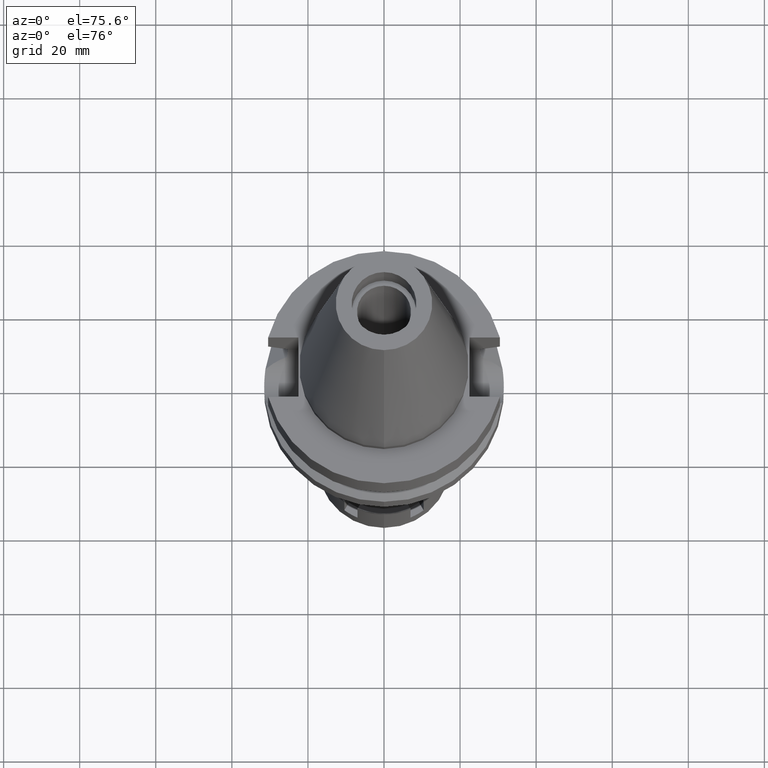
[diagram: clean part render]
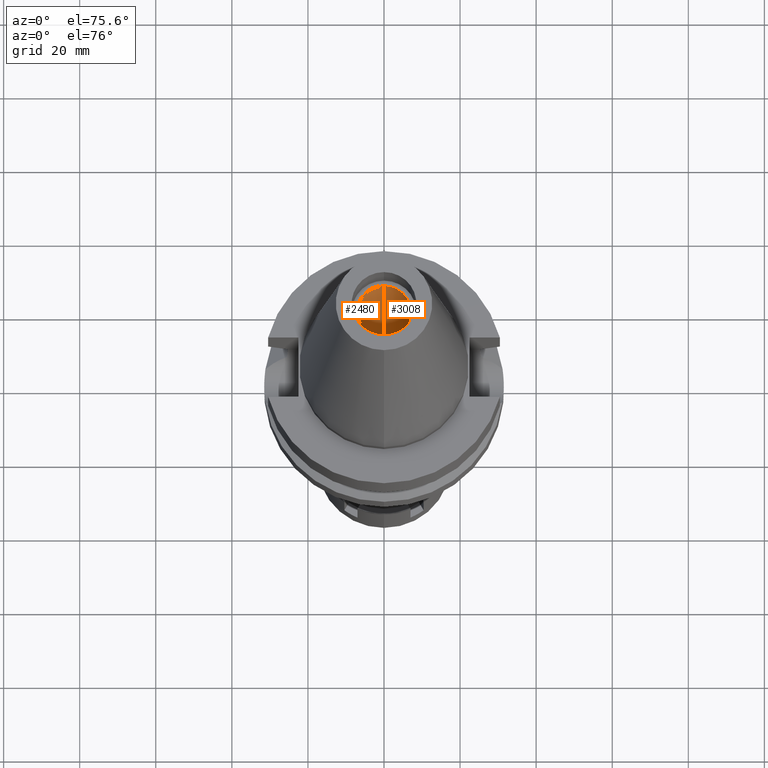
[diagram: same view with one multi-face feature highlighted, each face labeled with its STEP entity id]
A machine part, auxiliary view. The highlighted faces form ONE feature: a constant-radius fillet chain: 2 tangent blend faces with common blend radius 7.1 mm. The faces share edges in the B-rep.
Their STEP definitions:
[1] entity #3008 (Cylinder):
#159 = VECTOR ( 'NONE', #3013, 1000.000000000000000 ) ;
#207 = DIRECTION ( 'NONE',  ( 0.0000000000000000000, 0.0000000000000000000, 1.000000000000000000 ) ) ;
#313 = ORIENTED_EDGE ( 'NONE', *, *, #1304, .F. ) ;
#317 = DIRECTION ( 'NONE',  ( 0.0000000000000000000, 0.0000000000000000000, 1.000000000000000000 ) ) ;
#338 = CYLINDRICAL_SURFACE ( 'NONE', #3134, 7.100000000000000533 ) ;
#365 = ORIENTED_EDGE ( 'NONE', *, *, #1280, .T. ) ;
#461 = AXIS2_PLACEMENT_3D ( 'NONE', #846, #2808, #1122 ) ;
#620 = DIRECTION ( 'NONE',  ( 0.0000000000000000000, -1.000000000000000000, 0.0000000000000000000 ) ) ;
#756 = CARTESIAN_POINT ( 'NONE',  ( 0.0000000000000000000, 7.100000000000000533, 0.0000000000000000000 ) ) ;
#809 = VERTEX_POINT ( 'NONE', #756 ) ;
#846 = CARTESIAN_POINT ( 'NONE',  ( 0.0000000000000000000, 2.125007125879999817E-14, 56.39999999999999858 ) ) ;
#908 = CARTESIAN_POINT ( 'NONE',  ( 0.0000000000000000000, 2.125007125879999817E-14, 0.0000000000000000000 ) ) ;
#927 = CARTESIAN_POINT ( 'NONE',  ( 0.0000000000000000000, -7.100000000000000533, 56.39999999999999858 ) ) ;
#1122 = DIRECTION ( 'NONE',  ( 0.0000000000000000000, -1.000000000000000000, 0.0000000000000000000 ) ) ;
#1280 = EDGE_CURVE ( 'NONE', #2788, #3551, #3288, .T. ) ;
#1304 = EDGE_CURVE ( 'NONE', #809, #2377, #3578, .T. ) ;
#1469 = ORIENTED_EDGE ( 'NONE', *, *, #2473, .T. ) ;
#1577 = CIRCLE ( 'NONE', #461, 7.100000000000000533 ) ;
#1643 = CIRCLE ( 'NONE', #2419, 7.100000000000000533 ) ;
#1650 = CARTESIAN_POINT ( 'NONE',  ( 0.0000000000000000000, 7.100000000000000533, 56.39999999999999858 ) ) ;
#1874 = CARTESIAN_POINT ( 'NONE',  ( 0.0000000000000000000, 7.100000000000000533, 0.0000000000000000000 ) ) ;
#1938 = ORIENTED_EDGE ( 'NONE', *, *, #2939, .F. ) ;
#2059 = CARTESIAN_POINT ( 'NONE',  ( 0.0000000000000000000, 2.125007125879999817E-14, 73.51999999999999602 ) ) ;
#2169 = VECTOR ( 'NONE', #207, 1000.000000000000000 ) ;
#2194 = CARTESIAN_POINT ( 'NONE',  ( 0.0000000000000000000, -7.100000000000000533, 0.0000000000000000000 ) ) ;
#2279 = EDGE_LOOP ( 'NONE', ( #1938, #365, #1469, #313 ) ) ;
#2332 = DIRECTION ( 'NONE',  ( 0.0000000000000000000, -1.000000000000000000, 0.0000000000000000000 ) ) ;
#2377 = VERTEX_POINT ( 'NONE', #1650 ) ;
#2378 = CARTESIAN_POINT ( 'NONE',  ( 0.0000000000000000000, -7.100000000000000533, 0.0000000000000000000 ) ) ;
#2419 = AXIS2_PLACEMENT_3D ( 'NONE', #908, #317, #620 ) ;
#2473 = EDGE_CURVE ( 'NONE', #3551, #2377, #1577, .T. ) ;
#2788 = VERTEX_POINT ( 'NONE', #2378 ) ;
#2808 = DIRECTION ( 'NONE',  ( 0.0000000000000000000, 0.0000000000000000000, 1.000000000000000000 ) ) ;
#2939 = EDGE_CURVE ( 'NONE', #2788, #809, #1643, .T. ) ;
#3008 = ADVANCED_FACE ( 'NONE', ( #3488 ), #338, .F. ) ;
#3013 = DIRECTION ( 'NONE',  ( 0.0000000000000000000, 0.0000000000000000000, 1.000000000000000000 ) ) ;
#3134 = AXIS2_PLACEMENT_3D ( 'NONE', #2059, #3406, #2332 ) ;
#3288 = LINE ( 'NONE', #2194, #2169 ) ;
#3406 = DIRECTION ( 'NONE',  ( 0.0000000000000000000, 0.0000000000000000000, -1.000000000000000000 ) ) ;
#3488 = FACE_OUTER_BOUND ( 'NONE', #2279, .T. ) ;
#3551 = VERTEX_POINT ( 'NONE', #927 ) ;
#3578 = LINE ( 'NONE', #1874, #159 ) ;
[2] entity #2480 (Cylinder):
#94 = ORIENTED_EDGE ( 'NONE', *, *, #3345, .T. ) ;
#159 = VECTOR ( 'NONE', #3013, 1000.000000000000000 ) ;
#207 = DIRECTION ( 'NONE',  ( 0.0000000000000000000, 0.0000000000000000000, 1.000000000000000000 ) ) ;
#247 = DIRECTION ( 'NONE',  ( 0.0000000000000000000, -1.000000000000000000, 0.0000000000000000000 ) ) ;
#290 = CYLINDRICAL_SURFACE ( 'NONE', #821, 7.100000000000000533 ) ;
#472 = AXIS2_PLACEMENT_3D ( 'NONE', #983, #2978, #1320 ) ;
#503 = DIRECTION ( 'NONE',  ( 0.0000000000000000000, 0.0000000000000000000, -1.000000000000000000 ) ) ;
#756 = CARTESIAN_POINT ( 'NONE',  ( 0.0000000000000000000, 7.100000000000000533, 0.0000000000000000000 ) ) ;
#809 = VERTEX_POINT ( 'NONE', #756 ) ;
#821 = AXIS2_PLACEMENT_3D ( 'NONE', #1412, #2209, #3343 ) ;
#927 = CARTESIAN_POINT ( 'NONE',  ( 0.0000000000000000000, -7.100000000000000533, 56.39999999999999858 ) ) ;
#983 = CARTESIAN_POINT ( 'NONE',  ( 0.0000000000000000000, 2.125007125879999817E-14, 56.39999999999999858 ) ) ;
#1180 = CIRCLE ( 'NONE', #472, 7.100000000000000533 ) ;
#1280 = EDGE_CURVE ( 'NONE', #2788, #3551, #3288, .T. ) ;
#1304 = EDGE_CURVE ( 'NONE', #809, #2377, #3578, .T. ) ;
#1320 = DIRECTION ( 'NONE',  ( 0.0000000000000000000, 1.000000000000000000, 0.0000000000000000000 ) ) ;
#1398 = AXIS2_PLACEMENT_3D ( 'NONE', #1869, #503, #247 ) ;
#1412 = CARTESIAN_POINT ( 'NONE',  ( 0.0000000000000000000, 2.125007125879999817E-14, 73.51999999999999602 ) ) ;
#1650 = CARTESIAN_POINT ( 'NONE',  ( 0.0000000000000000000, 7.100000000000000533, 56.39999999999999858 ) ) ;
#1779 = EDGE_CURVE ( 'NONE', #2788, #809, #2227, .T. ) ;
#1869 = CARTESIAN_POINT ( 'NONE',  ( 0.0000000000000000000, 2.125007125879999817E-14, 0.0000000000000000000 ) ) ;
#1874 = CARTESIAN_POINT ( 'NONE',  ( 0.0000000000000000000, 7.100000000000000533, 0.0000000000000000000 ) ) ;
#1933 = ORIENTED_EDGE ( 'NONE', *, *, #1779, .T. ) ;
#2054 = ORIENTED_EDGE ( 'NONE', *, *, #1280, .F. ) ;
#2169 = VECTOR ( 'NONE', #207, 1000.000000000000000 ) ;
#2194 = CARTESIAN_POINT ( 'NONE',  ( 0.0000000000000000000, -7.100000000000000533, 0.0000000000000000000 ) ) ;
#2209 = DIRECTION ( 'NONE',  ( 0.0000000000000000000, 0.0000000000000000000, -1.000000000000000000 ) ) ;
#2227 = CIRCLE ( 'NONE', #1398, 7.100000000000000533 ) ;
#2377 = VERTEX_POINT ( 'NONE', #1650 ) ;
#2378 = CARTESIAN_POINT ( 'NONE',  ( 0.0000000000000000000, -7.100000000000000533, 0.0000000000000000000 ) ) ;
#2480 = ADVANCED_FACE ( 'NONE', ( #2825 ), #290, .F. ) ;
#2788 = VERTEX_POINT ( 'NONE', #2378 ) ;
#2825 = FACE_OUTER_BOUND ( 'NONE', #3177, .T. ) ;
#2978 = DIRECTION ( 'NONE',  ( 0.0000000000000000000, 0.0000000000000000000, 1.000000000000000000 ) ) ;
#3013 = DIRECTION ( 'NONE',  ( 0.0000000000000000000, 0.0000000000000000000, 1.000000000000000000 ) ) ;
#3177 = EDGE_LOOP ( 'NONE', ( #94, #2054, #1933, #3505 ) ) ;
#3288 = LINE ( 'NONE', #2194, #2169 ) ;
#3343 = DIRECTION ( 'NONE',  ( 0.0000000000000000000, -1.000000000000000000, 0.0000000000000000000 ) ) ;
#3345 = EDGE_CURVE ( 'NONE', #2377, #3551, #1180, .T. ) ;
#3505 = ORIENTED_EDGE ( 'NONE', *, *, #1304, .T. ) ;
#3551 = VERTEX_POINT ( 'NONE', #927 ) ;
#3578 = LINE ( 'NONE', #1874, #159 ) ;